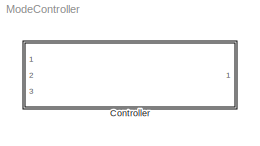
MODEL ModeController
KIND model
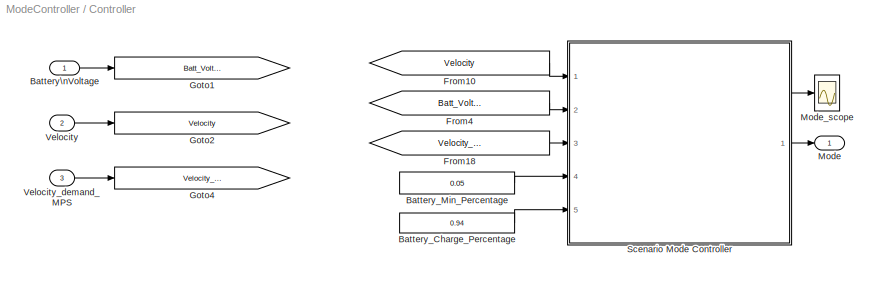
BLOCK [SubSystem] Controller
  FunctionWithSeparateData = off
  MaskHideContents = off
  MinAlgLoopOccurrences = off
  Opaque = off
  Ports = [3, 1]
  PropExecContextOutsideSubsystem = off
  RTWSystemCode = Auto
  RequestExecContextInheritance = off
  SID = 386
BLOCK [Constant] Controller/ Battery_Charge_Percentage
  SID = 391
  Value = 0.94
BLOCK [Inport] Controller/Battery\nVoltage
  IconDisplay = Port number
  SID = 388
BLOCK [Constant] Controller/Battery_Min_Percentage
  SID = 394
  Value = 0.05
BLOCK [From] Controller/From10
  GotoTag = Velocity
  SID = 408
BLOCK [From] Controller/From18
  GotoTag = Velocity_Demand_MPS
  SID = 411
BLOCK [From] Controller/From4
  GotoTag = Batt_Voltage
  SID = 412
BLOCK [Goto] Controller/Goto1
  GotoTag = Batt_Voltage
  SID = 416
  TagVisibility = local
BLOCK [Goto] Controller/Goto2
  GotoTag = Velocity
  SID = 417
  TagVisibility = local
BLOCK [Goto] Controller/Goto4
  GotoTag = Velocity_Demand_MPS
  SID = 419
  TagVisibility = local
BLOCK [Outport] Controller/Mode
  IconDisplay = Port number
  SID = 433
BLOCK [Scope] Controller/Mode_scope
  DataFormat = StructureWithTime
  Floating = off
  LimitDataPoints = off
  NumInputPorts = 1
  Ports = [1]
  SID = 422
  SampleTime = 0
  SaveName = ScopeData1
  TimeRange = 500
  YMax = 3
  YMin = -1
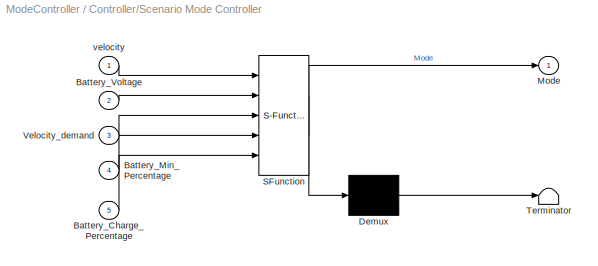
BLOCK [SubSystem] Controller/Scenario Mode Controller
  FunctionWithSeparateData = off
  MaskDescription = Embedded MATLAB block
  MaskDisplay = disp('fcn');
  MaskHideContents = off
  MaskIconFrame = on
  MaskIconOpaque = off
  MaskIconRotate = none
  MaskIconUnits = autoscale
  MaskPortRotate = default
  MaskSelfModifiable = on
  MaskType = Stateflow
  MinAlgLoopOccurrences = off
  Opaque = off
  PermitHierarchicalResolution = ExplicitOnly
  Ports = [5, 1]
  PropExecContextOutsideSubsystem = off
  RTWSystemCode = Auto
  RequestExecContextInheritance = off
  SID = 427
  TreatAsAtomicUnit = on
BLOCK [Demux] Controller/Scenario Mode Controller/ Demux 
  Outputs = 1
  Ports = [1, 1]
  SID = 427::15
BLOCK [S-Function] Controller/Scenario Mode Controller/ SFunction 
  EnableBusSupport = on
  FunctionName = sf_sfun
  PortCounts = [5 2]
  Ports = [5, 2]
  SID = 427::14
  Tag = Stateflow S-Function ModeController 2
BLOCK [Terminator] Controller/Scenario Mode Controller/ Terminator 
  SID = 427::17
BLOCK [Inport] Controller/Scenario Mode Controller/Battery_Charge_Percentage
  IconDisplay = Port number
  Port = 5
  SID = 427::21
BLOCK [Inport] Controller/Scenario Mode Controller/Battery_Min_Percentage
  IconDisplay = Port number
  Port = 4
  SID = 427::20
BLOCK [Inport] Controller/Scenario Mode Controller/Battery_Voltage
  IconDisplay = Port number
  Port = 2
  SID = 427::18
BLOCK [Outport] Controller/Scenario Mode Controller/Mode
  IconDisplay = Port number
  SID = 427::5
BLOCK [Inport] Controller/Scenario Mode Controller/Velocity_demand
  IconDisplay = Port number
  Port = 3
  SID = 427::19
BLOCK [Inport] Controller/Scenario Mode Controller/velocity
  IconDisplay = Port number
  SID = 427::1
BLOCK [Inport] Controller/Velocity
  IconDisplay = Port number
  Port = 2
  SID = 389
BLOCK [Inport] Controller/Velocity_demand_MPS
  IconDisplay = Port number
  Port = 3
  SID = 390
LINE Controller/ Battery_Charge_Percentage:1 -> Controller/Scenario Mode Controller:5
LINE Controller/Battery\nVoltage:1 -> Controller/Goto1:1
LINE Controller/Battery_Min_Percentage:1 -> Controller/Scenario Mode Controller:4
LINE Controller/From10:1 -> Controller/Scenario Mode Controller:1
LINE Controller/From18:1 -> Controller/Scenario Mode Controller:3
LINE Controller/From4:1 -> Controller/Scenario Mode Controller:2
LINE Controller/Scenario Mode Controller/ Demux :1 -> Controller/Scenario Mode Controller/ Terminator :1
LINE Controller/Scenario Mode Controller/ SFunction :1 -> Controller/Scenario Mode Controller/ Demux :1
LINE Controller/Scenario Mode Controller/ SFunction :2 -> Controller/Scenario Mode Controller/Mode:1
LINE Controller/Scenario Mode Controller/Battery_Charge_Percentage:1 -> Controller/Scenario Mode Controller/ SFunction :5
LINE Controller/Scenario Mode Controller/Battery_Min_Percentage:1 -> Controller/Scenario Mode Controller/ SFunction :4
LINE Controller/Scenario Mode Controller/Battery_Voltage:1 -> Controller/Scenario Mode Controller/ SFunction :2
LINE Controller/Scenario Mode Controller/Velocity_demand:1 -> Controller/Scenario Mode Controller/ SFunction :3
LINE Controller/Scenario Mode Controller/velocity:1 -> Controller/Scenario Mode Controller/ SFunction :1
NET Controller/Scenario Mode Controller:1 -> Controller/Mode:1, Controller/Mode_scope:1
LINE Controller/Velocity:1 -> Controller/Goto2:1
LINE Controller/Velocity_demand_MPS:1 -> Controller/Goto4:1
note: NET lines group one-source signal fan-out (src -> all destinations, sorted); 1:1 wires keep LINE
CHART Controller/Scenario Mode Controller states=1 transitions=1
  STATE_LABEL 'eML_blk_kernel()'
